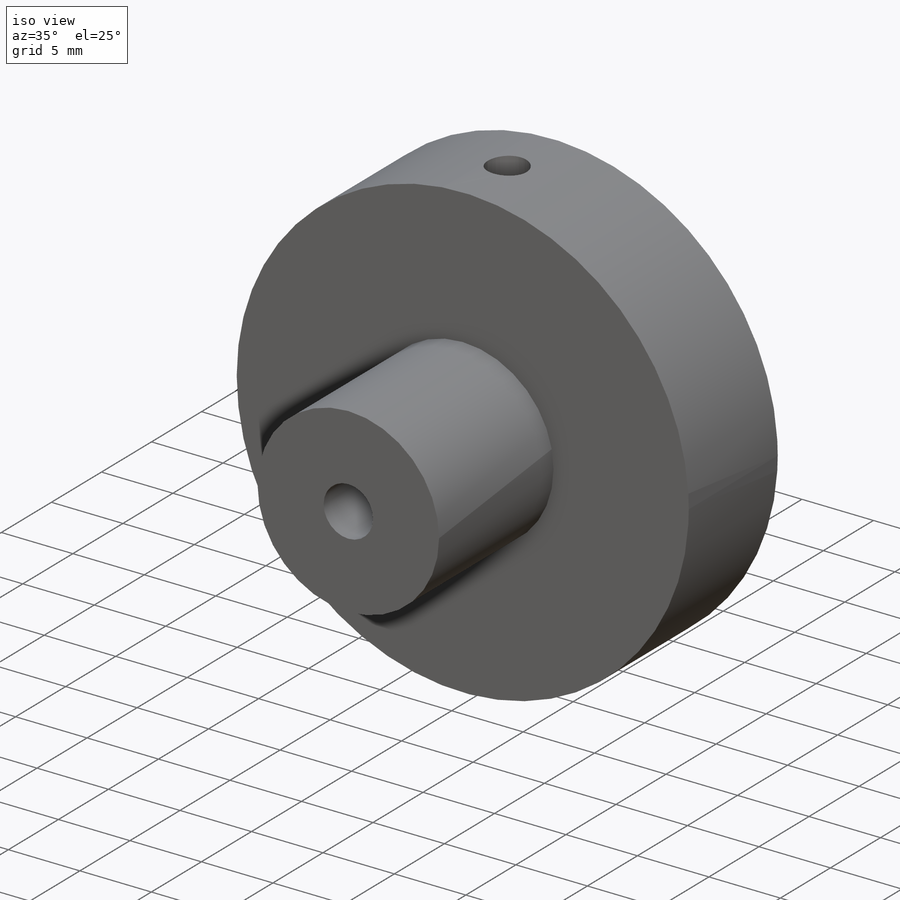
[diagram: iso view]
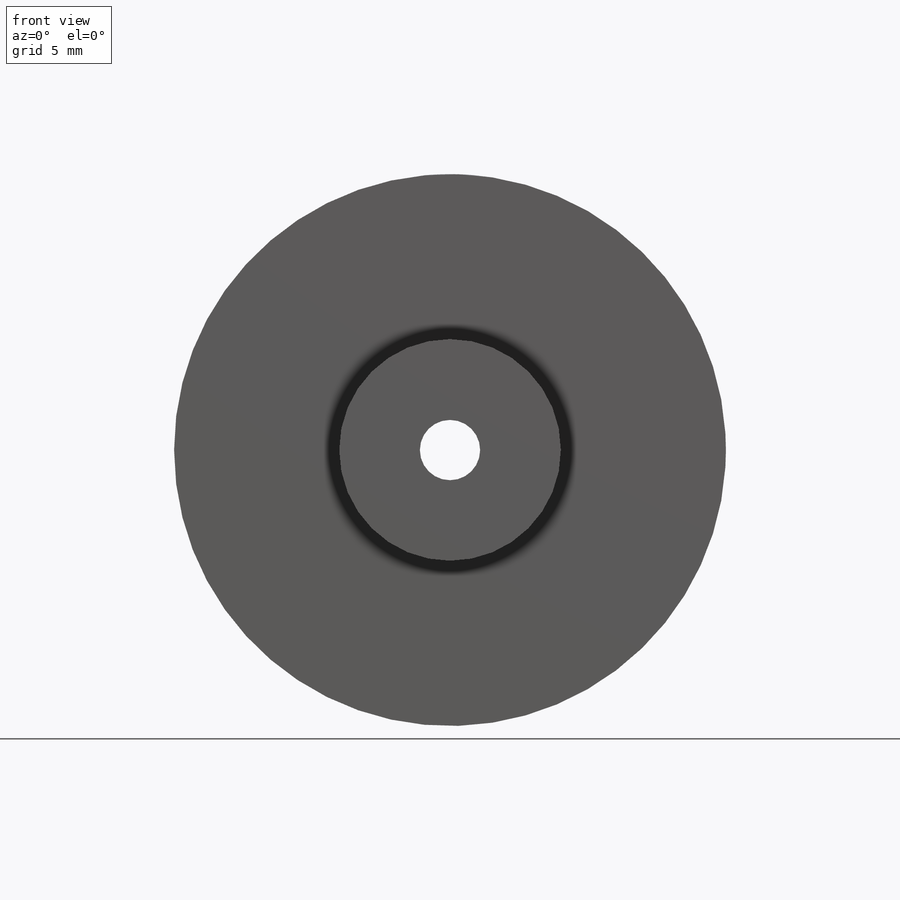
[diagram: front view]
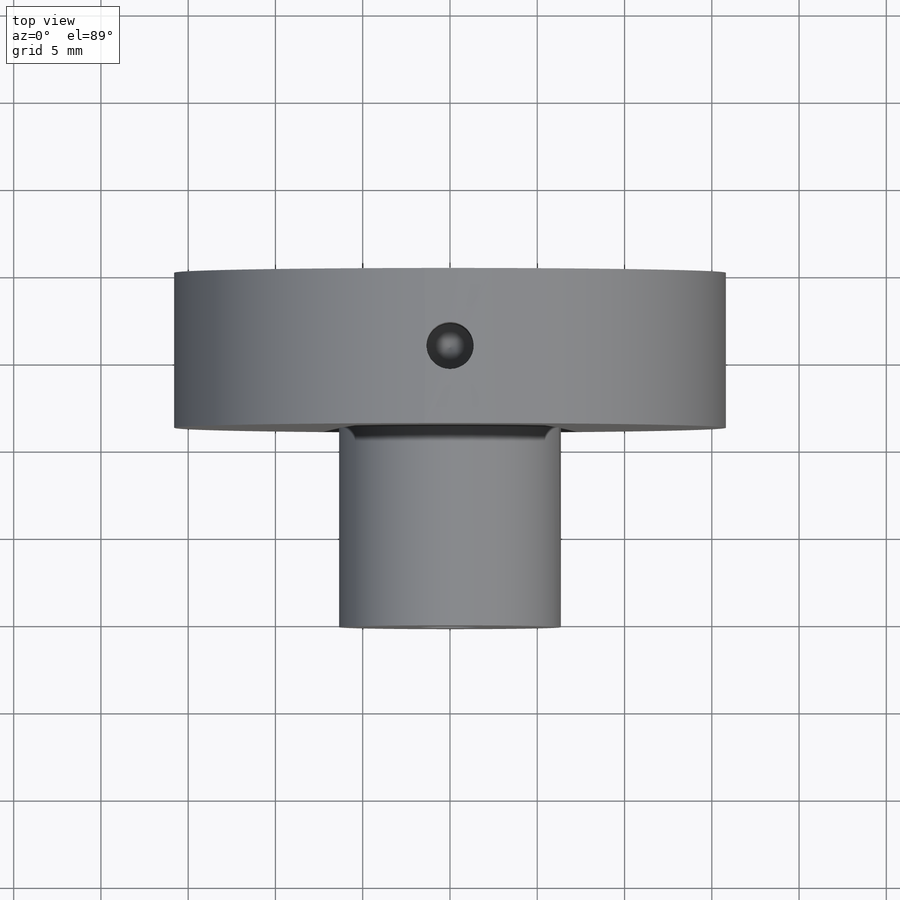
[diagram: top view]
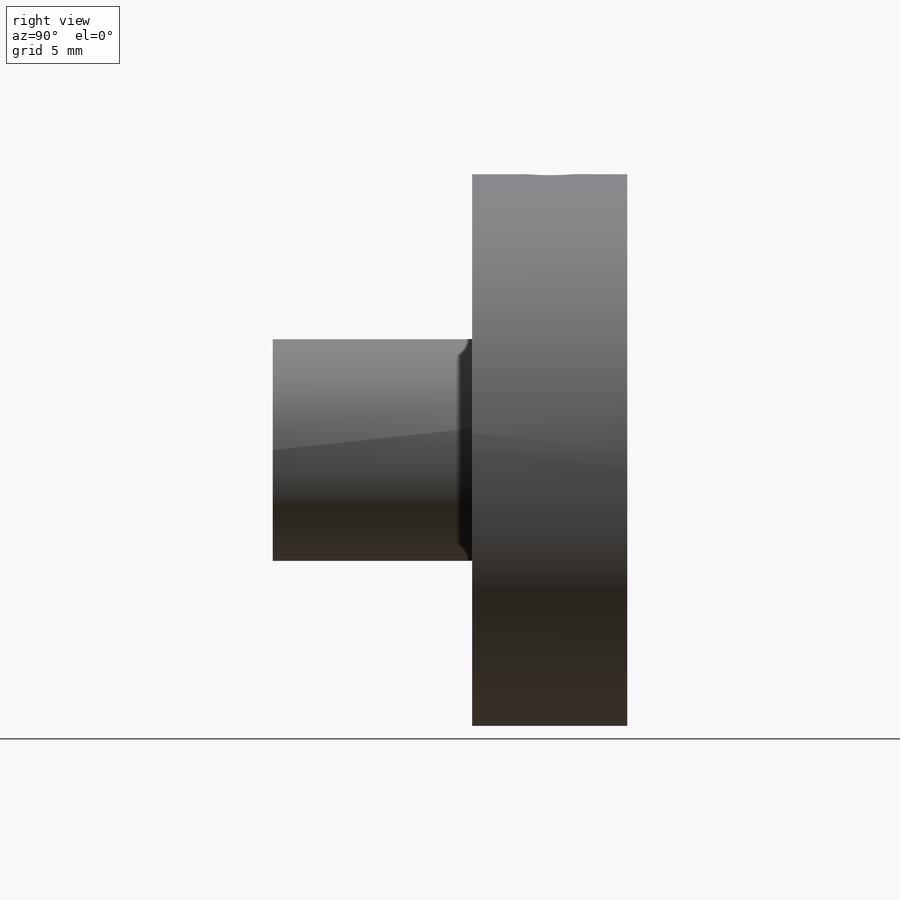
[diagram: right view]
SOLIDWORKS PART (.sldprt)
format: sldprt  version: not decoded by parser v0  size: 267,264 bytes
history: native  units: mm
features: sketch x10, cut_extrude x3, hole x3, material x1, extrude x1 (+13 scaffold rows collapsed)
feature tree (31):
  scaffold x13  (default folders/planes/origin — collapsed)
  material  "Material <not specified>"
  sketch  "Sketch1"  dims[D1=31.623mm]
  extrude  "Boss-Extrude1"  Depth=25.4mm
  sketch  "Sketch2"  dims[D1=12.7mm]
  cut_extrude  "Cut-Extrude1"  Depth=16.51mm
  hole  "#8-32 Tapped Hole1"  Diameter=3.4544mm Depth=25.4mm
  sketch  "Sketch4"
  sketch  "Sketch3"  dims[hole-wizard template sketch: 60 standard entries collapsed; hole parameters kept: c18.Thru Tap Drill Depth=25.4mm]
  sketch  "Sketch5"  dims[D1=3.175mm]
  cut_extrude  "Cut-Extrude2"  [1 undecoded]
  hole  "#6-32 Tapped Hole2"  Diameter=2.7051mm Depth=6.858mm
  sketch  "Sketch7"  dims[D1=6.35mm D2=6.35mm]
  sketch  "Sketch6"  dims[hole-wizard template sketch: 47 standard entries collapsed; hole parameters kept: c15.Tap Drill Depth=6.858mm c15.D3=~14.816244mm c15.Drill Angle=118.0deg]
  hole  "#6-32 Tapped Hole3"  Diameter=2.7051mm Depth=6.096mm
  sketch  "3DSketch1"
  sketch  "Sketch8"  dims[hole-wizard template sketch: 47 standard entries collapsed; hole parameters kept: c15.Tap Drill Depth=6.096mm c15.D3=~14.816244mm c15.Drill Angle=118.0deg]
  sketch  "Sketch9"
  cut_extrude  "Cut-Extrude3"  Depth=5.08mm
decode coverage: 13 of 17 modeling features carry decoded parameters
note: ~ marks probable driven/reference dimensions
note: 1 parameter value undecoded
note: suppression state not decoded; provenance and decode notes live in map.json
